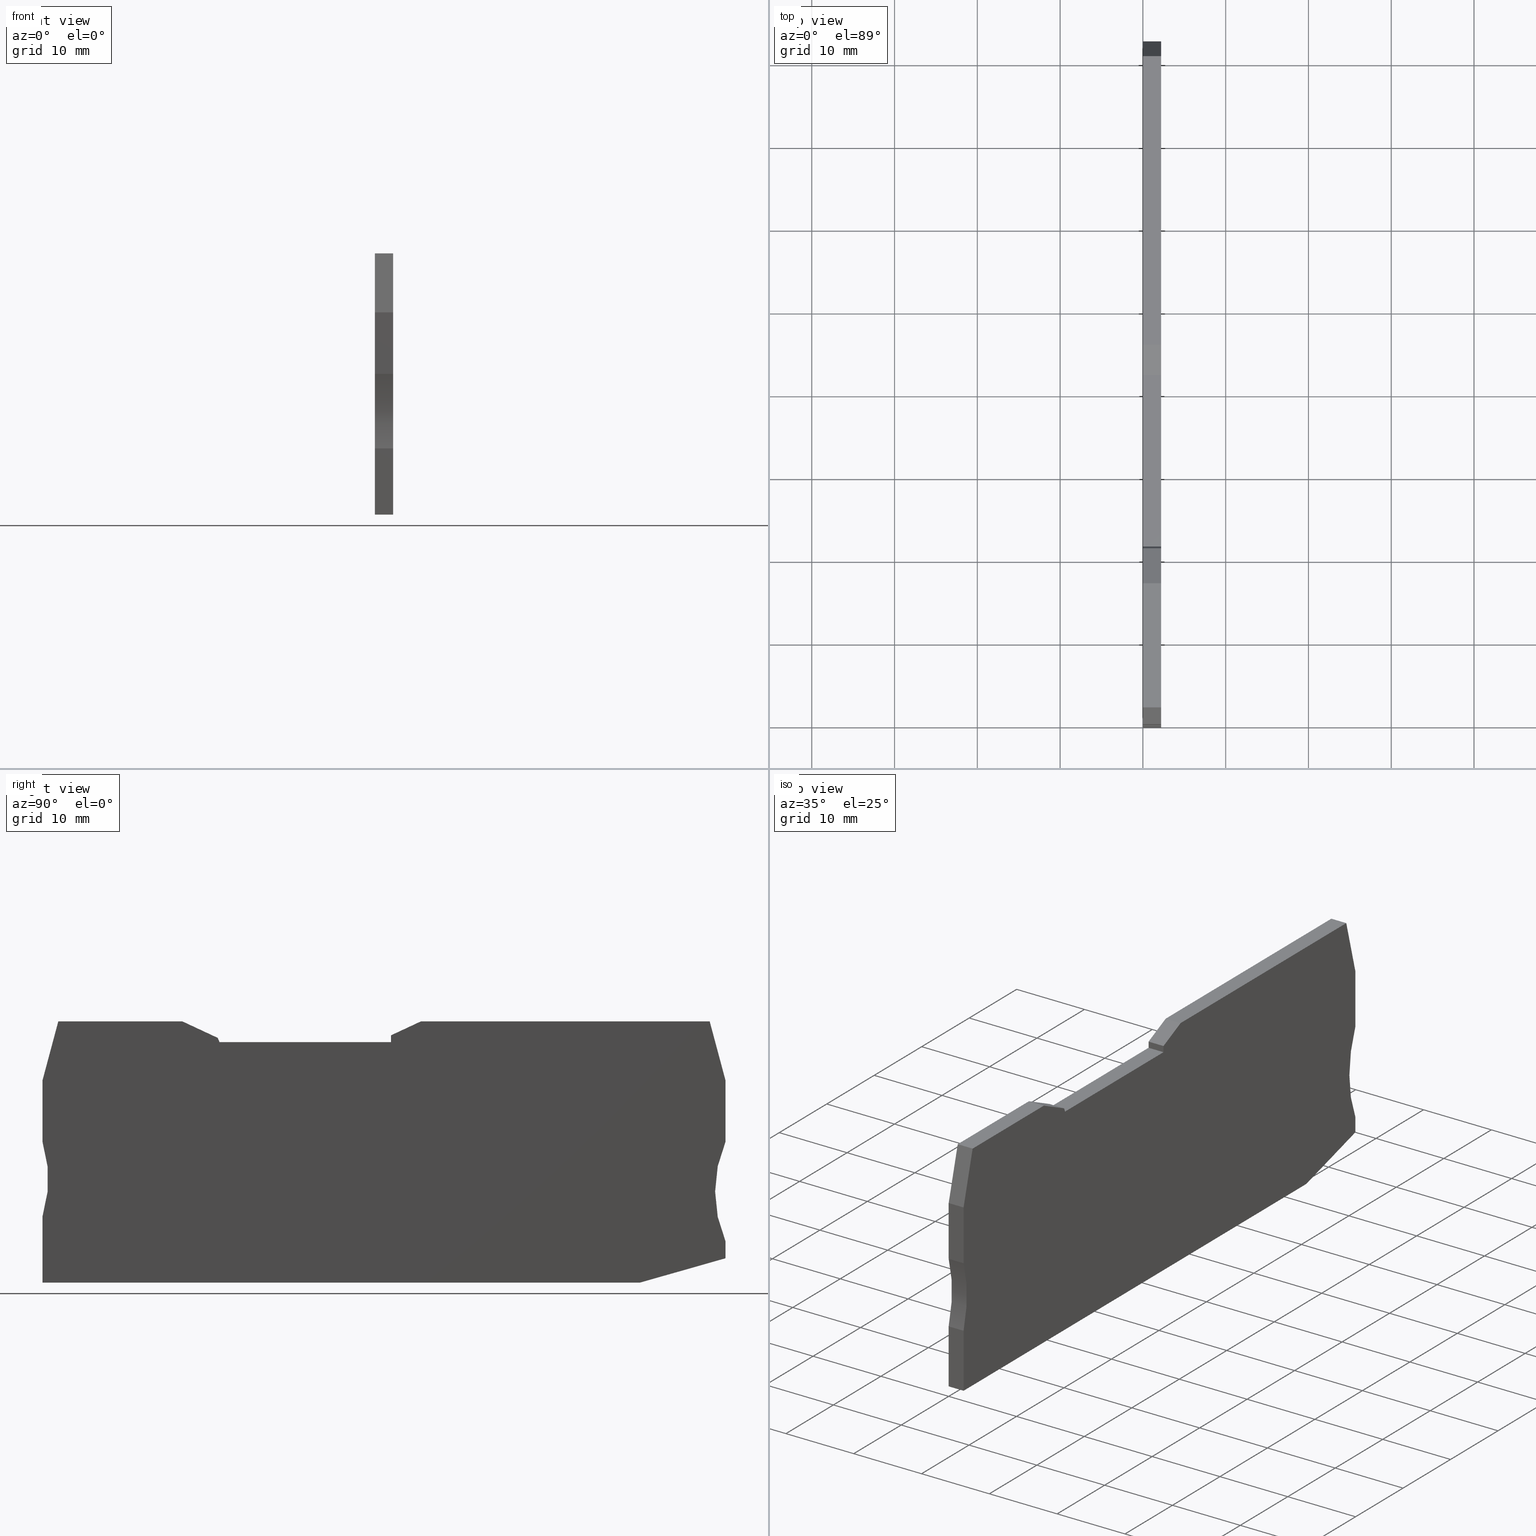
[diagram: canonical four-view strip — front | top / right | iso, engineering-drawing reading convention]
A machine part, canonical four-view strip (front | top / right | iso — engineering-drawing reading convention). The complete STEP part file that produces these views, byte-faithful:
ISO-10303-21;
HEADER;
FILE_DESCRIPTION(('Creo Elements/Direct Modeling STEP Export'),'2;1');
FILE_NAME(
'D:/temp/JobSpoolerServerData/JobServer Files/1ddbb790-b4e9-42f2-b97c-39
235b41f7a1/work/output/model.stp','2018-02-08T18:13:26',(''),(''),
'Creo Elements/Direct Modeling STEP processor for AP214 (Solid Model)',
'Creo Elements/Direct Modeling 18.1I  14-Aug-2016 (C) Parametric Technol
ogy GmbH','');
FILE_SCHEMA(('AUTOMOTIVE_DESIGN { 1 0 10303 214 1 1 1 1 }'));
ENDSEC;
DATA;
#10=CARTESIAN_POINT('',(73.4877845817932,-13.5354749771187,
-2.22044604925031E-14));
#20=DIRECTION('',(0.,0.,1.));
#30=DIRECTION('',(1.,0.,0.));
#40=AXIS2_PLACEMENT_3D('',#10,#20,#30);
#50=PLANE('',#40);
#60=CARTESIAN_POINT('',(47.920285,-38.2000000000045,
-2.22044604925031E-14));
#70=DIRECTION('',(1.,0.,0.));
#80=VECTOR('',#70,1.);
#90=LINE('',#60,#80);
#100=CARTESIAN_POINT('',(8.72968082603374,-38.2000000000045,
-2.22044604925031E-14));
#110=VERTEX_POINT('',#100);
#120=CARTESIAN_POINT('',(80.9082470389631,-38.2000000000045,
-2.22044604925031E-14));
#130=VERTEX_POINT('',#120);
#140=EDGE_CURVE('',#110,#130,#90,.T.);
#150=ORIENTED_EDGE('',*,*,#140,.F.);
#160=CARTESIAN_POINT('',(47.920285,-47.5820316150173,
-2.22044604925031E-14));
#170=DIRECTION('',(-0.961855207107832,-0.273559062287377,0.));
#180=VECTOR('',#170,1.);
#190=LINE('',#160,#180);
#200=CARTESIAN_POINT('',(91.2296808273924,-35.2645043788768,
-2.22044604925031E-14));
#210=VERTEX_POINT('',#200);
#220=EDGE_CURVE('',#210,#130,#190,.T.);
#230=ORIENTED_EDGE('',*,*,#220,.T.);
#240=CARTESIAN_POINT('',(91.2296808273924,-33.886127,
-2.22044604925031E-14));
#250=DIRECTION('',(0.,1.,0.));
#260=VECTOR('',#250,1.);
#270=LINE('',#240,#260);
#280=CARTESIAN_POINT('',(91.2296808273924,-33.2000000030743,
-2.22044604925031E-14));
#290=VERTEX_POINT('',#280);
#300=EDGE_CURVE('',#210,#290,#270,.T.);
#310=ORIENTED_EDGE('',*,*,#300,.F.);
#320=CARTESIAN_POINT('',(104.977407910921,-27.2000000000058,
-2.22044604925031E-14));
#330=DIRECTION('',(0.,0.,1.));
#340=DIRECTION('',(1.,0.,0.));
#350=AXIS2_PLACEMENT_3D('',#320,#330,#340);
#360=CIRCLE('',#350,15.);
#370=CARTESIAN_POINT('',(91.2296808260532,-21.2000000000058,
-2.22044604925031E-14));
#380=VERTEX_POINT('',#370);
#390=EDGE_CURVE('',#380,#290,#360,.T.);
#400=ORIENTED_EDGE('',*,*,#390,.T.);
#410=CARTESIAN_POINT('',(91.2296808260532,-33.886127,
-2.22044604925031E-14));
#420=DIRECTION('',(-2.77555756156289E-17,1.,0.));
#430=VECTOR('',#420,1.);
#440=LINE('',#410,#430);
#450=CARTESIAN_POINT('',(91.2296808260532,-13.7655444566897,
-2.22044604925031E-14));
#460=VERTEX_POINT('',#450);
#470=EDGE_CURVE('',#380,#460,#440,.T.);
#480=ORIENTED_EDGE('',*,*,#470,.F.);
#490=CARTESIAN_POINT('',(96.6209746697856,-33.886127,
-2.22044604925031E-14));
#500=DIRECTION('',(-0.258819045102908,0.965925826288965,0.));
#510=VECTOR('',#500,1.);
#520=LINE('',#490,#510);
#530=CARTESIAN_POINT('',(89.323076435176,-6.65000000001358,
-2.22044604925031E-14));
#540=VERTEX_POINT('',#530);
#550=EDGE_CURVE('',#460,#540,#520,.T.);
#560=ORIENTED_EDGE('',*,*,#550,.F.);
#570=CARTESIAN_POINT('',(47.920285,-6.65000000001358,
-2.22044604925031E-14));
#580=DIRECTION('',(-1.,-2.77555756156289E-17,0.));
#590=VECTOR('',#580,1.);
#600=LINE('',#570,#590);
#610=CARTESIAN_POINT('',(54.4296808260525,-6.65000000001358,
-2.22044604925031E-14));
#620=VERTEX_POINT('',#610);
#630=EDGE_CURVE('',#540,#620,#600,.T.);
#640=ORIENTED_EDGE('',*,*,#630,.F.);
#650=CARTESIAN_POINT('',(47.920285,-9.68538112366281,
-2.22044604925031E-14));
#660=DIRECTION('',(-0.906307787036715,-0.42261826174056,0.));
#670=VECTOR('',#660,1.);
#680=LINE('',#650,#670);
#690=CARTESIAN_POINT('',(50.8284150539722,-8.32929780858542,
-2.22044604925031E-14));
#700=VERTEX_POINT('',#690);
#710=EDGE_CURVE('',#620,#700,#680,.T.);
#720=ORIENTED_EDGE('',*,*,#710,.F.);
#730=CARTESIAN_POINT('',(50.8284150539722,-33.886127,
-2.22044604925031E-14));
#740=DIRECTION('',(0.,-1.,0.));
#750=VECTOR('',#740,1.);
#760=LINE('',#730,#750);
#770=CARTESIAN_POINT('',(50.8284150539722,-9.15000000001104,
-2.22044604925031E-14));
#780=VERTEX_POINT('',#770);
#790=EDGE_CURVE('',#700,#780,#760,.T.);
#800=ORIENTED_EDGE('',*,*,#790,.F.);
#810=CARTESIAN_POINT('',(47.920285,-9.15000000001104,
-2.22044604925031E-14));
#820=DIRECTION('',(1.,6.69640348774667E-16,0.));
#830=VECTOR('',#820,1.);
#840=LINE('',#810,#830);
#850=CARTESIAN_POINT('',(30.1111811089338,-9.15000000001105,
-2.22044604925031E-14));
#860=VERTEX_POINT('',#850);
#870=EDGE_CURVE('',#860,#780,#840,.T.);
#880=ORIENTED_EDGE('',*,*,#870,.T.);
#890=CARTESIAN_POINT('',(40.5658283475003,-33.886127,
-2.22044604925031E-14));
#900=DIRECTION('',(-0.389303997086195,0.92110933002153,0.));
#910=VECTOR('',#900,1.);
#920=LINE('',#890,#910);
#930=CARTESIAN_POINT('',(29.8952339400211,-8.63906008270748,
-2.22044604925031E-14));
#940=VERTEX_POINT('',#930);
#950=EDGE_CURVE('',#860,#940,#920,.T.);
#960=ORIENTED_EDGE('',*,*,#950,.F.);
#970=CARTESIAN_POINT('',(47.920285,-17.0442794306105,
-2.22044604925031E-14));
#980=DIRECTION('',(0.90630778703665,-0.422618261740699,0.));
#990=VECTOR('',#980,1.);
#1000=LINE('',#970,#990);
#1010=CARTESIAN_POINT('',(25.6296808273747,-6.65000000001358,
-2.22044604925031E-14));
#1020=VERTEX_POINT('',#1010);
#1030=EDGE_CURVE('',#1020,#940,#1000,.T.);
#1040=ORIENTED_EDGE('',*,*,#1030,.T.);
#1050=CARTESIAN_POINT('',(47.920285,-6.65000000001358,
-2.22044604925031E-14));
#1060=DIRECTION('',(-1.,3.77302406067959E-29,0.));
#1070=VECTOR('',#1060,1.);
#1080=LINE('',#1050,#1070);
#1090=CARTESIAN_POINT('',(10.6362852169109,-6.65000000001358,
-2.22044604925031E-14));
#1100=VERTEX_POINT('',#1090);
#1110=EDGE_CURVE('',#1020,#1100,#1080,.T.);
#1120=ORIENTED_EDGE('',*,*,#1110,.F.);
#1130=CARTESIAN_POINT('',(3.33838698230316,-33.886127,
-2.22044604925031E-14));
#1140=DIRECTION('',(-0.258819045102848,-0.965925826288981,0.));
#1150=VECTOR('',#1140,1.);
#1160=LINE('',#1130,#1150);
#1170=CARTESIAN_POINT('',(8.72968082605227,-13.7655444566222,
-2.22044604925031E-14));
#1180=VERTEX_POINT('',#1170);
#1190=EDGE_CURVE('',#1100,#1180,#1160,.T.);
#1200=ORIENTED_EDGE('',*,*,#1190,.F.);
#1210=CARTESIAN_POINT('',(8.72968082604465,-33.886127,
-2.22044604925031E-14));
#1220=DIRECTION('',(-3.78848562751832E-13,-1.,0.));
#1230=VECTOR('',#1220,1.);
#1240=LINE('',#1210,#1230);
#1250=CARTESIAN_POINT('',(8.72968082604945,-21.2000000000586,
-2.22044604925031E-14));
#1260=VERTEX_POINT('',#1250);
#1270=EDGE_CURVE('',#1180,#1260,#1240,.T.);
#1280=ORIENTED_EDGE('',*,*,#1270,.F.);
#1290=CARTESIAN_POINT('',(-5.57940719521947,-25.7000000000117,
-2.22044604925031E-14));
#1300=DIRECTION('',(0.,0.,1.));
#1310=DIRECTION('',(1.,0.,0.));
#1320=AXIS2_PLACEMENT_3D('',#1290,#1300,#1310);
#1330=CIRCLE('',#1320,15.);
#1340=CARTESIAN_POINT('',(8.72968082603374,-30.2000000000147,
-2.22044604925031E-14));
#1350=VERTEX_POINT('',#1340);
#1360=EDGE_CURVE('',#1350,#1260,#1330,.T.);
#1370=ORIENTED_EDGE('',*,*,#1360,.T.);
#1380=CARTESIAN_POINT('',(8.72968082603374,-33.886127,
-2.22044604925031E-14));
#1390=DIRECTION('',(0.,-1.,0.));
#1400=VECTOR('',#1390,1.);
#1410=LINE('',#1380,#1400);
#1420=EDGE_CURVE('',#1350,#110,#1410,.T.);
#1430=ORIENTED_EDGE('',*,*,#1420,.F.);
#1440=EDGE_LOOP('',(#1430,#1370,#1280,#1200,#1120,#1040,#960,#880,#800,
#720,#640,#560,#480,#400,#310,#230,#150));
#1450=FACE_OUTER_BOUND('',#1440,.T.);
#1460=ADVANCED_FACE('',(#1450),#50,.F.);
#1470=COLOUR_RGB('',0.560784339904785,0.588235318660736,
0.600000023841858);
#1480=FILL_AREA_STYLE_COLOUR('',#1470);
#1490=FILL_AREA_STYLE('',(#1480));
#1500=SURFACE_STYLE_FILL_AREA(#1490);
#1510=SURFACE_SIDE_STYLE('',(#1500));
#1520=SURFACE_STYLE_USAGE(.BOTH.,#1510);
#1530=PRESENTATION_STYLE_ASSIGNMENT((#1520));
#1540=CARTESIAN_POINT('',(73.4877845817932,-13.5354749771187,
2.19999999999998));
#1550=DIRECTION('',(0.,0.,1.));
#1560=DIRECTION('',(1.,0.,0.));
#1570=AXIS2_PLACEMENT_3D('',#1540,#1550,#1560);
#1580=PLANE('',#1570);
#1590=CARTESIAN_POINT('',(8.72968082603374,-33.886127,2.19999999999998))
;
#1600=DIRECTION('',(0.,-1.,0.));
#1610=VECTOR('',#1600,1.);
#1620=LINE('',#1590,#1610);
#1630=CARTESIAN_POINT('',(8.72968082603374,-30.2000000000147,
2.19999999999998));
#1640=VERTEX_POINT('',#1630);
#1650=CARTESIAN_POINT('',(8.72968082603374,-38.2000000000045,
2.19999999999998));
#1660=VERTEX_POINT('',#1650);
#1670=EDGE_CURVE('',#1640,#1660,#1620,.T.);
#1680=ORIENTED_EDGE('',*,*,#1670,.T.);
#1690=CARTESIAN_POINT('',(-5.57940719521947,-25.7000000000117,
2.19999999999998));
#1700=DIRECTION('',(0.,0.,1.));
#1710=DIRECTION('',(1.,0.,0.));
#1720=AXIS2_PLACEMENT_3D('',#1690,#1700,#1710);
#1730=CIRCLE('',#1720,15.);
#1740=CARTESIAN_POINT('',(8.72968082604945,-21.2000000000586,
2.19999999999998));
#1750=VERTEX_POINT('',#1740);
#1760=EDGE_CURVE('',#1640,#1750,#1730,.T.);
#1770=ORIENTED_EDGE('',*,*,#1760,.F.);
#1780=CARTESIAN_POINT('',(8.72968082604465,-33.886127,2.19999999999998))
;
#1790=DIRECTION('',(-3.78848562751832E-13,-1.,0.));
#1800=VECTOR('',#1790,1.);
#1810=LINE('',#1780,#1800);
#1820=CARTESIAN_POINT('',(8.72968082605227,-13.7655444566222,
2.19999999999998));
#1830=VERTEX_POINT('',#1820);
#1840=EDGE_CURVE('',#1830,#1750,#1810,.T.);
#1850=ORIENTED_EDGE('',*,*,#1840,.T.);
#1860=CARTESIAN_POINT('',(3.33838698230316,-33.886127,2.19999999999998))
;
#1870=DIRECTION('',(-0.258819045102848,-0.965925826288981,0.));
#1880=VECTOR('',#1870,1.);
#1890=LINE('',#1860,#1880);
#1900=CARTESIAN_POINT('',(10.6362852169109,-6.65000000001358,
2.19999999999998));
#1910=VERTEX_POINT('',#1900);
#1920=EDGE_CURVE('',#1910,#1830,#1890,.T.);
#1930=ORIENTED_EDGE('',*,*,#1920,.T.);
#1940=CARTESIAN_POINT('',(47.920285,-6.65000000001358,2.19999999999998))
;
#1950=DIRECTION('',(-1.,3.77302406067959E-29,0.));
#1960=VECTOR('',#1950,1.);
#1970=LINE('',#1940,#1960);
#1980=CARTESIAN_POINT('',(25.6296808273747,-6.65000000001358,
2.19999999999998));
#1990=VERTEX_POINT('',#1980);
#2000=EDGE_CURVE('',#1990,#1910,#1970,.T.);
#2010=ORIENTED_EDGE('',*,*,#2000,.T.);
#2020=CARTESIAN_POINT('',(47.920285,-17.0442794306105,2.19999999999998))
;
#2030=DIRECTION('',(0.90630778703665,-0.422618261740699,0.));
#2040=VECTOR('',#2030,1.);
#2050=LINE('',#2020,#2040);
#2060=CARTESIAN_POINT('',(29.8952339400211,-8.63906008270748,
2.19999999999998));
#2070=VERTEX_POINT('',#2060);
#2080=EDGE_CURVE('',#1990,#2070,#2050,.T.);
#2090=ORIENTED_EDGE('',*,*,#2080,.F.);
#2100=CARTESIAN_POINT('',(40.5658283475003,-33.886127,2.19999999999998))
;
#2110=DIRECTION('',(-0.389303997086195,0.92110933002153,0.));
#2120=VECTOR('',#2110,1.);
#2130=LINE('',#2100,#2120);
#2140=CARTESIAN_POINT('',(30.1111811089338,-9.15000000001106,
2.19999999999998));
#2150=VERTEX_POINT('',#2140);
#2160=EDGE_CURVE('',#2150,#2070,#2130,.T.);
#2170=ORIENTED_EDGE('',*,*,#2160,.T.);
#2180=CARTESIAN_POINT('',(47.920285,-9.15000000001105,2.19999999999998))
;
#2190=DIRECTION('',(-1.,-6.69640348774667E-16,0.));
#2200=VECTOR('',#2190,1.);
#2210=LINE('',#2180,#2200);
#2220=CARTESIAN_POINT('',(50.8284150539722,-9.15000000001105,
2.19999999999998));
#2230=VERTEX_POINT('',#2220);
#2240=EDGE_CURVE('',#2230,#2150,#2210,.T.);
#2250=ORIENTED_EDGE('',*,*,#2240,.T.);
#2260=CARTESIAN_POINT('',(50.8284150539722,-33.886127,2.19999999999998))
;
#2270=DIRECTION('',(0.,-1.,0.));
#2280=VECTOR('',#2270,1.);
#2290=LINE('',#2260,#2280);
#2300=CARTESIAN_POINT('',(50.8284150539722,-8.32929780858542,
2.19999999999998));
#2310=VERTEX_POINT('',#2300);
#2320=EDGE_CURVE('',#2310,#2230,#2290,.T.);
#2330=ORIENTED_EDGE('',*,*,#2320,.T.);
#2340=CARTESIAN_POINT('',(47.920285,-9.68538112366281,2.19999999999998))
;
#2350=DIRECTION('',(-0.906307787036715,-0.42261826174056,0.));
#2360=VECTOR('',#2350,1.);
#2370=LINE('',#2340,#2360);
#2380=CARTESIAN_POINT('',(54.4296808260525,-6.65000000001358,
2.19999999999998));
#2390=VERTEX_POINT('',#2380);
#2400=EDGE_CURVE('',#2390,#2310,#2370,.T.);
#2410=ORIENTED_EDGE('',*,*,#2400,.T.);
#2420=CARTESIAN_POINT('',(47.920285,-6.65000000001358,2.19999999999998))
;
#2430=DIRECTION('',(-1.,-2.77555756156289E-17,0.));
#2440=VECTOR('',#2430,1.);
#2450=LINE('',#2420,#2440);
#2460=CARTESIAN_POINT('',(89.323076435176,-6.65000000001358,
2.19999999999998));
#2470=VERTEX_POINT('',#2460);
#2480=EDGE_CURVE('',#2470,#2390,#2450,.T.);
#2490=ORIENTED_EDGE('',*,*,#2480,.T.);
#2500=CARTESIAN_POINT('',(96.6209746697856,-33.886127,2.19999999999998))
;
#2510=DIRECTION('',(-0.258819045102908,0.965925826288965,0.));
#2520=VECTOR('',#2510,1.);
#2530=LINE('',#2500,#2520);
#2540=CARTESIAN_POINT('',(91.2296808260532,-13.7655444566897,
2.19999999999998));
#2550=VERTEX_POINT('',#2540);
#2560=EDGE_CURVE('',#2550,#2470,#2530,.T.);
#2570=ORIENTED_EDGE('',*,*,#2560,.T.);
#2580=CARTESIAN_POINT('',(91.2296808260532,-33.886127,2.19999999999998))
;
#2590=DIRECTION('',(-2.77555756156289E-17,1.,0.));
#2600=VECTOR('',#2590,1.);
#2610=LINE('',#2580,#2600);
#2620=CARTESIAN_POINT('',(91.2296808260532,-21.2000000000058,
2.19999999999998));
#2630=VERTEX_POINT('',#2620);
#2640=EDGE_CURVE('',#2630,#2550,#2610,.T.);
#2650=ORIENTED_EDGE('',*,*,#2640,.T.);
#2660=CARTESIAN_POINT('',(104.977407910921,-27.2000000000058,
2.19999999999998));
#2670=DIRECTION('',(0.,0.,1.));
#2680=DIRECTION('',(1.,0.,0.));
#2690=AXIS2_PLACEMENT_3D('',#2660,#2670,#2680);
#2700=CIRCLE('',#2690,15.);
#2710=CARTESIAN_POINT('',(91.2296808273924,-33.2000000030743,
2.19999999999998));
#2720=VERTEX_POINT('',#2710);
#2730=EDGE_CURVE('',#2630,#2720,#2700,.T.);
#2740=ORIENTED_EDGE('',*,*,#2730,.F.);
#2750=CARTESIAN_POINT('',(91.2296808273924,-33.886127,2.19999999999998))
;
#2760=DIRECTION('',(0.,1.,0.));
#2770=VECTOR('',#2760,1.);
#2780=LINE('',#2750,#2770);
#2790=CARTESIAN_POINT('',(91.2296808273924,-35.2645043788768,
2.19999999999998));
#2800=VERTEX_POINT('',#2790);
#2810=EDGE_CURVE('',#2800,#2720,#2780,.T.);
#2820=ORIENTED_EDGE('',*,*,#2810,.T.);
#2830=CARTESIAN_POINT('',(47.920285,-47.5820316150173,2.19999999999998))
;
#2840=DIRECTION('',(-0.961855207107832,-0.273559062287377,0.));
#2850=VECTOR('',#2840,1.);
#2860=LINE('',#2830,#2850);
#2870=CARTESIAN_POINT('',(80.9082470389631,-38.2000000000045,
2.19999999999998));
#2880=VERTEX_POINT('',#2870);
#2890=EDGE_CURVE('',#2800,#2880,#2860,.T.);
#2900=ORIENTED_EDGE('',*,*,#2890,.F.);
#2910=CARTESIAN_POINT('',(47.920285,-38.2000000000045,2.19999999999998))
;
#2920=DIRECTION('',(1.,0.,0.));
#2930=VECTOR('',#2920,1.);
#2940=LINE('',#2910,#2930);
#2950=EDGE_CURVE('',#1660,#2880,#2940,.T.);
#2960=ORIENTED_EDGE('',*,*,#2950,.T.);
#2970=EDGE_LOOP('',(#2960,#2900,#2820,#2740,#2650,#2570,#2490,#2410,
#2330,#2250,#2170,#2090,#2010,#1930,#1850,#1770,#1680));
#2980=FACE_OUTER_BOUND('',#2970,.T.);
#2990=ADVANCED_FACE('',(#2980),#1580,.T.);
#3000=COLOUR_RGB('',0.560784339904785,0.588235318660736,
0.600000023841858);
#3010=FILL_AREA_STYLE_COLOUR('',#3000);
#3020=FILL_AREA_STYLE('',(#3010));
#3030=SURFACE_STYLE_FILL_AREA(#3020);
#3040=SURFACE_SIDE_STYLE('',(#3030));
#3050=SURFACE_STYLE_USAGE(.BOTH.,#3040);
#3060=PRESENTATION_STYLE_ASSIGNMENT((#3050));
#3070=CARTESIAN_POINT('',(30.829680828215,-10.8500000000143,
2.19999999999998));
#3080=DIRECTION('',(0.92110933002153,0.389303997086195,0.));
#3090=DIRECTION('',(0.389303997086195,-0.92110933002153,0.));
#3100=AXIS2_PLACEMENT_3D('',#3070,#3080,#3090);
#3110=PLANE('',#3100);
#3120=CARTESIAN_POINT('',(29.8952339400211,-8.63906008270748,
-2.1316282072803E-14));
#3130=DIRECTION('',(0.,0.,1.));
#3140=VECTOR('',#3130,1.);
#3150=LINE('',#3120,#3140);
#3160=EDGE_CURVE('',#940,#2070,#3150,.T.);
#3170=ORIENTED_EDGE('',*,*,#3160,.T.);
#3180=ORIENTED_EDGE('',*,*,#950,.T.);
#3190=CARTESIAN_POINT('',(30.1111811089338,-9.15000000001105,
-2.1316282072803E-14));
#3200=DIRECTION('',(-1.92535423529343E-15,4.55546761142705E-15,-1.));
#3210=VECTOR('',#3200,1.);
#3220=LINE('',#3190,#3210);
#3230=EDGE_CURVE('',#2150,#860,#3220,.T.);
#3240=ORIENTED_EDGE('',*,*,#3230,.T.);
#3250=ORIENTED_EDGE('',*,*,#2160,.F.);
#3260=EDGE_LOOP('',(#3250,#3240,#3180,#3170));
#3270=FACE_OUTER_BOUND('',#3260,.T.);
#3280=ADVANCED_FACE('',(#3270),#3110,.T.);
#3290=COLOUR_RGB('',0.560784339904785,0.588235318660736,
0.600000023841858);
#3300=FILL_AREA_STYLE_COLOUR('',#3290);
#3310=FILL_AREA_STYLE('',(#3300));
#3320=SURFACE_STYLE_FILL_AREA(#3310);
#3330=SURFACE_SIDE_STYLE('',(#3320));
#3340=SURFACE_STYLE_USAGE(.BOTH.,#3330);
#3350=PRESENTATION_STYLE_ASSIGNMENT((#3340));
#3360=CARTESIAN_POINT('',(40.4300980895686,-9.15000000001106,
2.10000000003397));
#3370=DIRECTION('',(-6.69640348774667E-16,1.,4.55546761142705E-15));
#3380=DIRECTION('',(1.,6.69640348774745E-16,-1.70351068697075E-14));
#3390=AXIS2_PLACEMENT_3D('',#3360,#3370,#3380);
#3400=PLANE('',#3390);
#3410=ORIENTED_EDGE('',*,*,#2240,.F.);
#3420=ORIENTED_EDGE('',*,*,#3230,.F.);
#3430=ORIENTED_EDGE('',*,*,#870,.F.);
#3440=CARTESIAN_POINT('',(50.8284150539722,-9.15000000001104,
-2.1316282072803E-14));
#3450=DIRECTION('',(0.,-4.55546761142705E-15,1.));
#3460=VECTOR('',#3450,1.);
#3470=LINE('',#3440,#3460);
#3480=EDGE_CURVE('',#780,#2230,#3470,.T.);
#3490=ORIENTED_EDGE('',*,*,#3480,.F.);
#3500=EDGE_LOOP('',(#3490,#3430,#3420,#3410));
#3510=FACE_OUTER_BOUND('',#3500,.T.);
#3520=ADVANCED_FACE('',(#3510),#3400,.T.);
#3530=COLOUR_RGB('',0.560784339904785,0.588235318660736,
0.600000023841858);
#3540=FILL_AREA_STYLE_COLOUR('',#3530);
#3550=FILL_AREA_STYLE('',(#3540));
#3560=SURFACE_STYLE_FILL_AREA(#3550);
#3570=SURFACE_SIDE_STYLE('',(#3560));
#3580=SURFACE_STYLE_USAGE(.BOTH.,#3570);
#3590=PRESENTATION_STYLE_ASSIGNMENT((#3580));
#3600=CARTESIAN_POINT('',(25.5188334960532,-6.65000000001358,
2.19999999999998));
#3610=DIRECTION('',(3.77302406067959E-29,1.,0.));
#3620=DIRECTION('',(1.,-3.77302406067959E-29,0.));
#3630=AXIS2_PLACEMENT_3D('',#3600,#3610,#3620);
#3640=PLANE('',#3630);
#3650=ORIENTED_EDGE('',*,*,#2000,.F.);
#3660=CARTESIAN_POINT('',(10.6362852169109,-6.65000000001358,
-2.1316282072803E-14));
#3670=DIRECTION('',(0.,0.,1.));
#3680=VECTOR('',#3670,1.);
#3690=LINE('',#3660,#3680);
#3700=EDGE_CURVE('',#1100,#1910,#3690,.T.);
#3710=ORIENTED_EDGE('',*,*,#3700,.T.);
#3720=ORIENTED_EDGE('',*,*,#1110,.T.);
#3730=CARTESIAN_POINT('',(25.6296808273747,-6.65000000001357,
-2.1316282072803E-14));
#3740=DIRECTION('',(0.,0.,1.));
#3750=VECTOR('',#3740,1.);
#3760=LINE('',#3730,#3750);
#3770=EDGE_CURVE('',#1020,#1990,#3760,.T.);
#3780=ORIENTED_EDGE('',*,*,#3770,.F.);
#3790=EDGE_LOOP('',(#3780,#3720,#3710,#3650));
#3800=FACE_OUTER_BOUND('',#3790,.T.);
#3810=ADVANCED_FACE('',(#3800),#3640,.T.);
#3820=COLOUR_RGB('',0.560784339904785,0.588235318660736,
0.600000023841858);
#3830=FILL_AREA_STYLE_COLOUR('',#3820);
#3840=FILL_AREA_STYLE('',(#3830));
#3850=SURFACE_STYLE_FILL_AREA(#3840);
#3860=SURFACE_SIDE_STYLE('',(#3850));
#3870=SURFACE_STYLE_USAGE(.BOTH.,#3860);
#3880=PRESENTATION_STYLE_ASSIGNMENT((#3870));
#3890=CARTESIAN_POINT('',(50.8284150539722,-8.64783293898923,
2.19999999999998));
#3900=DIRECTION('',(-1.,0.,0.));
#3910=DIRECTION('',(0.,1.,0.));
#3920=AXIS2_PLACEMENT_3D('',#3890,#3900,#3910);
#3930=PLANE('',#3920);
#3940=ORIENTED_EDGE('',*,*,#2320,.F.);
#3950=ORIENTED_EDGE('',*,*,#3480,.T.);
#3960=ORIENTED_EDGE('',*,*,#790,.T.);
#3970=CARTESIAN_POINT('',(50.8284150539722,-8.32929780858542,
-2.1316282072803E-14));
#3980=DIRECTION('',(0.,0.,1.));
#3990=VECTOR('',#3980,1.);
#4000=LINE('',#3970,#3990);
#4010=EDGE_CURVE('',#700,#2310,#4000,.T.);
#4020=ORIENTED_EDGE('',*,*,#4010,.F.);
#4030=EDGE_LOOP('',(#4020,#3960,#3950,#3940));
#4040=FACE_OUTER_BOUND('',#4030,.T.);
#4050=ADVANCED_FACE('',(#4040),#3930,.T.);
#4060=COLOUR_RGB('',0.560784339904785,0.588235318660736,
0.600000023841858);
#4070=FILL_AREA_STYLE_COLOUR('',#4060);
#4080=FILL_AREA_STYLE('',(#4070));
#4090=SURFACE_STYLE_FILL_AREA(#4080);
#4100=SURFACE_SIDE_STYLE('',(#4090));
#4110=SURFACE_STYLE_USAGE(.BOTH.,#4100);
#4120=PRESENTATION_STYLE_ASSIGNMENT((#4110));
#4130=CARTESIAN_POINT('',(8.72968082605225,-13.831370705416,
2.19999999999998));
#4140=DIRECTION('',(-1.,3.78848562751832E-13,0.));
#4150=DIRECTION('',(3.78848562751832E-13,1.,0.));
#4160=AXIS2_PLACEMENT_3D('',#4130,#4140,#4150);
#4170=PLANE('',#4160);
#4180=ORIENTED_EDGE('',*,*,#1840,.F.);
#4190=CARTESIAN_POINT('',(8.72968082604945,-21.2000000000586,
2.19999999999998));
#4200=DIRECTION('',(0.,0.,1.));
#4210=VECTOR('',#4200,1.);
#4220=LINE('',#4190,#4210);
#4230=EDGE_CURVE('',#1260,#1750,#4220,.T.);
#4240=ORIENTED_EDGE('',*,*,#4230,.T.);
#4250=ORIENTED_EDGE('',*,*,#1270,.T.);
#4260=CARTESIAN_POINT('',(8.72968082605227,-13.7655444566222,
-2.1316282072803E-14));
#4270=DIRECTION('',(0.,0.,1.));
#4280=VECTOR('',#4270,1.);
#4290=LINE('',#4260,#4280);
#4300=EDGE_CURVE('',#1180,#1830,#4290,.T.);
#4310=ORIENTED_EDGE('',*,*,#4300,.F.);
#4320=EDGE_LOOP('',(#4310,#4250,#4240,#4180));
#4330=FACE_OUTER_BOUND('',#4320,.T.);
#4340=ADVANCED_FACE('',(#4330),#4170,.T.);
#4350=COLOUR_RGB('',0.560784339904785,0.588235318660736,
0.600000023841858);
#4360=FILL_AREA_STYLE_COLOUR('',#4350);
#4370=FILL_AREA_STYLE('',(#4360));
#4380=SURFACE_STYLE_FILL_AREA(#4370);
#4390=SURFACE_SIDE_STYLE('',(#4380));
#4400=SURFACE_STYLE_USAGE(.BOTH.,#4390);
#4410=PRESENTATION_STYLE_ASSIGNMENT((#4400));
#4420=CARTESIAN_POINT('',(54.3292190265036,-6.69684610649522,
2.19999999999998));
#4430=DIRECTION('',(-0.42261826174056,0.906307787036715,0.));
#4440=DIRECTION('',(0.906307787036715,0.42261826174056,0.));
#4450=AXIS2_PLACEMENT_3D('',#4420,#4430,#4440);
#4460=PLANE('',#4450);
#4470=ORIENTED_EDGE('',*,*,#4010,.T.);
#4480=ORIENTED_EDGE('',*,*,#710,.T.);
#4490=CARTESIAN_POINT('',(54.4296808260525,-6.65000000001358,
-2.1316282072803E-14));
#4500=DIRECTION('',(0.,0.,1.));
#4510=VECTOR('',#4500,1.);
#4520=LINE('',#4490,#4510);
#4530=EDGE_CURVE('',#620,#2390,#4520,.T.);
#4540=ORIENTED_EDGE('',*,*,#4530,.F.);
#4550=ORIENTED_EDGE('',*,*,#2400,.F.);
#4560=EDGE_LOOP('',(#4550,#4540,#4480,#4470));
#4570=FACE_OUTER_BOUND('',#4560,.T.);
#4580=ADVANCED_FACE('',(#4570),#4460,.T.);
#4590=COLOUR_RGB('',0.560784339904785,0.588235318660736,
0.600000023841858);
#4600=FILL_AREA_STYLE_COLOUR('',#4590);
#4610=FILL_AREA_STYLE('',(#4600));
#4620=SURFACE_STYLE_FILL_AREA(#4610);
#4630=SURFACE_SIDE_STYLE('',(#4620));
#4640=SURFACE_STYLE_USAGE(.BOTH.,#4630);
#4650=PRESENTATION_STYLE_ASSIGNMENT((#4640));
#4660=CARTESIAN_POINT('',(29.7208814285329,-8.55775817138196,
2.19999999999998));
#4670=DIRECTION('',(0.422618261740699,0.90630778703665,0.));
#4680=DIRECTION('',(0.90630778703665,-0.422618261740699,0.));
#4690=AXIS2_PLACEMENT_3D('',#4660,#4670,#4680);
#4700=PLANE('',#4690);
#4710=ORIENTED_EDGE('',*,*,#3770,.T.);
#4720=ORIENTED_EDGE('',*,*,#1030,.F.);
#4730=ORIENTED_EDGE('',*,*,#3160,.F.);
#4740=ORIENTED_EDGE('',*,*,#2080,.T.);
#4750=EDGE_LOOP('',(#4740,#4730,#4720,#4710));
#4760=FACE_OUTER_BOUND('',#4750,.T.);
#4770=ADVANCED_FACE('',(#4760),#4700,.T.);
#4780=COLOUR_RGB('',0.560784339904785,0.588235318660736,
0.600000023841858);
#4790=FILL_AREA_STYLE_COLOUR('',#4780);
#4800=FILL_AREA_STYLE('',(#4790));
#4810=SURFACE_STYLE_FILL_AREA(#4800);
#4820=SURFACE_SIDE_STYLE('',(#4810));
#4830=SURFACE_STYLE_USAGE(.BOTH.,#4820);
#4840=PRESENTATION_STYLE_ASSIGNMENT((#4830));
#4850=CARTESIAN_POINT('',(88.9394129411867,-6.65000000001358,
2.19999999999998));
#4860=DIRECTION('',(-2.77555756156289E-17,1.,0.));
#4870=DIRECTION('',(1.,2.77555756156289E-17,0.));
#4880=AXIS2_PLACEMENT_3D('',#4850,#4860,#4870);
#4890=PLANE('',#4880);
#4900=ORIENTED_EDGE('',*,*,#2480,.F.);
#4910=ORIENTED_EDGE('',*,*,#4530,.T.);
#4920=ORIENTED_EDGE('',*,*,#630,.T.);
#4930=CARTESIAN_POINT('',(89.323076435176,-6.65000000001358,
-2.1316282072803E-14));
#4940=DIRECTION('',(0.,0.,1.));
#4950=VECTOR('',#4940,1.);
#4960=LINE('',#4930,#4950);
#4970=EDGE_CURVE('',#540,#2470,#4960,.T.);
#4980=ORIENTED_EDGE('',*,*,#4970,.F.);
#4990=EDGE_LOOP('',(#4980,#4920,#4910,#4900));
#5000=FACE_OUTER_BOUND('',#4990,.T.);
#5010=ADVANCED_FACE('',(#5000),#4890,.T.);
#5020=COLOUR_RGB('',0.560784339904785,0.588235318660736,
0.600000023841858);
#5030=FILL_AREA_STYLE_COLOUR('',#5020);
#5040=FILL_AREA_STYLE('',(#5030));
#5050=SURFACE_STYLE_FILL_AREA(#5040);
#5060=SURFACE_SIDE_STYLE('',(#5050));
#5070=SURFACE_STYLE_USAGE(.BOTH.,#5060);
#5080=PRESENTATION_STYLE_ASSIGNMENT((#5070));
#5090=CARTESIAN_POINT('',(8.72968082603374,-30.4972542058063,
2.19999999999998));
#5100=DIRECTION('',(-1.,0.,0.));
#5110=DIRECTION('',(0.,1.,0.));
#5120=AXIS2_PLACEMENT_3D('',#5090,#5100,#5110);
#5130=PLANE('',#5120);
#5140=CARTESIAN_POINT('',(8.72968082603374,-38.2000000000045,
-2.1316282072803E-14));
#5150=DIRECTION('',(0.,0.,1.));
#5160=VECTOR('',#5150,1.);
#5170=LINE('',#5140,#5160);
#5180=EDGE_CURVE('',#110,#1660,#5170,.T.);
#5190=ORIENTED_EDGE('',*,*,#5180,.T.);
#5200=ORIENTED_EDGE('',*,*,#1420,.T.);
#5210=CARTESIAN_POINT('',(8.72968082603374,-30.2000000000147,
2.19999999999998));
#5220=DIRECTION('',(0.,0.,1.));
#5230=VECTOR('',#5220,1.);
#5240=LINE('',#5210,#5230);
#5250=EDGE_CURVE('',#1350,#1640,#5240,.T.);
#5260=ORIENTED_EDGE('',*,*,#5250,.F.);
#5270=ORIENTED_EDGE('',*,*,#1670,.F.);
#5280=EDGE_LOOP('',(#5270,#5260,#5200,#5190));
#5290=FACE_OUTER_BOUND('',#5280,.T.);
#5300=ADVANCED_FACE('',(#5290),#5130,.T.);
#5310=COLOUR_RGB('',0.560784339904785,0.588235318660736,
0.600000023841858);
#5320=FILL_AREA_STYLE_COLOUR('',#5310);
#5330=FILL_AREA_STYLE('',(#5320));
#5340=SURFACE_STYLE_FILL_AREA(#5330);
#5350=SURFACE_SIDE_STYLE('',(#5340));
#5360=SURFACE_STYLE_USAGE(.BOTH.,#5350);
#5370=PRESENTATION_STYLE_ASSIGNMENT((#5360));
#5380=CARTESIAN_POINT('',(91.2126437391977,-13.7019611829321,
2.19999999999998));
#5390=DIRECTION('',(0.965925826288965,0.258819045102908,0.));
#5400=DIRECTION('',(0.258819045102908,-0.965925826288965,0.));
#5410=AXIS2_PLACEMENT_3D('',#5380,#5390,#5400);
#5420=PLANE('',#5410);
#5430=ORIENTED_EDGE('',*,*,#4970,.T.);
#5440=ORIENTED_EDGE('',*,*,#550,.T.);
#5450=CARTESIAN_POINT('',(91.2296808260532,-13.7655444566897,
-2.1316282072803E-14));
#5460=DIRECTION('',(0.,0.,1.));
#5470=VECTOR('',#5460,1.);
#5480=LINE('',#5450,#5470);
#5490=EDGE_CURVE('',#460,#2550,#5480,.T.);
#5500=ORIENTED_EDGE('',*,*,#5490,.F.);
#5510=ORIENTED_EDGE('',*,*,#2560,.F.);
#5520=EDGE_LOOP('',(#5510,#5500,#5440,#5430));
#5530=FACE_OUTER_BOUND('',#5520,.T.);
#5540=ADVANCED_FACE('',(#5530),#5420,.T.);
#5550=COLOUR_RGB('',0.560784339904785,0.588235318660736,
0.600000023841858);
#5560=FILL_AREA_STYLE_COLOUR('',#5550);
#5570=FILL_AREA_STYLE('',(#5560));
#5580=SURFACE_STYLE_FILL_AREA(#5570);
#5590=SURFACE_SIDE_STYLE('',(#5580));
#5600=SURFACE_STYLE_USAGE(.BOTH.,#5590);
#5610=PRESENTATION_STYLE_ASSIGNMENT((#5600));
#5620=CARTESIAN_POINT('',(-5.57940719521947,-25.7000000000117,
2.19999999999998));
#5630=DIRECTION('',(0.,0.,1.));
#5640=DIRECTION('',(1.,0.,0.));
#5650=AXIS2_PLACEMENT_3D('',#5620,#5630,#5640);
#5660=CYLINDRICAL_SURFACE('',#5650,15.);
#5670=ORIENTED_EDGE('',*,*,#5250,.T.);
#5680=ORIENTED_EDGE('',*,*,#1360,.F.);
#5690=ORIENTED_EDGE('',*,*,#4230,.F.);
#5700=ORIENTED_EDGE('',*,*,#1760,.T.);
#5710=EDGE_LOOP('',(#5700,#5690,#5680,#5670));
#5720=FACE_OUTER_BOUND('',#5710,.T.);
#5730=ADVANCED_FACE('',(#5720),#5660,.F.);
#5740=COLOUR_RGB('',0.560784339904785,0.588235318660736,
0.600000023841858);
#5750=FILL_AREA_STYLE_COLOUR('',#5740);
#5760=FILL_AREA_STYLE('',(#5750));
#5770=SURFACE_STYLE_FILL_AREA(#5760);
#5780=SURFACE_SIDE_STYLE('',(#5770));
#5790=SURFACE_STYLE_USAGE(.BOTH.,#5780);
#5800=PRESENTATION_STYLE_ASSIGNMENT((#5790));
#5810=CARTESIAN_POINT('',(91.2296808260532,-20.7961658625185,
2.19999999999998));
#5820=DIRECTION('',(1.,2.77555756156289E-17,0.));
#5830=DIRECTION('',(2.77555756156289E-17,-1.,0.));
#5840=AXIS2_PLACEMENT_3D('',#5810,#5820,#5830);
#5850=PLANE('',#5840);
#5860=ORIENTED_EDGE('',*,*,#2640,.F.);
#5870=ORIENTED_EDGE('',*,*,#5490,.T.);
#5880=ORIENTED_EDGE('',*,*,#470,.T.);
#5890=CARTESIAN_POINT('',(91.2296808260532,-21.2000000000058,
2.19999999999998));
#5900=DIRECTION('',(0.,0.,1.));
#5910=VECTOR('',#5900,1.);
#5920=LINE('',#5890,#5910);
#5930=EDGE_CURVE('',#380,#2630,#5920,.T.);
#5940=ORIENTED_EDGE('',*,*,#5930,.F.);
#5950=EDGE_LOOP('',(#5940,#5880,#5870,#5860));
#5960=FACE_OUTER_BOUND('',#5950,.T.);
#5970=ADVANCED_FACE('',(#5960),#5850,.T.);
#5980=COLOUR_RGB('',0.560784339904785,0.588235318660736,
0.600000023841858);
#5990=FILL_AREA_STYLE_COLOUR('',#5980);
#6000=FILL_AREA_STYLE('',(#5990));
#6010=SURFACE_STYLE_FILL_AREA(#6000);
#6020=SURFACE_SIDE_STYLE('',(#6010));
#6030=SURFACE_STYLE_USAGE(.BOTH.,#6020);
#6040=PRESENTATION_STYLE_ASSIGNMENT((#6030));
#6050=CARTESIAN_POINT('',(12.7296808260338,-38.2000000000045,
2.19999999999998));
#6060=DIRECTION('',(-0.,-1.,-0.));
#6070=DIRECTION('',(-1.,0.,0.));
#6080=AXIS2_PLACEMENT_3D('',#6050,#6060,#6070);
#6090=PLANE('',#6080);
#6100=ORIENTED_EDGE('',*,*,#2950,.F.);
#6110=CARTESIAN_POINT('',(80.9082470389631,-38.2000000000045,
-2.1316282072803E-14));
#6120=DIRECTION('',(0.,0.,1.));
#6130=VECTOR('',#6120,1.);
#6140=LINE('',#6110,#6130);
#6150=EDGE_CURVE('',#130,#2880,#6140,.T.);
#6160=ORIENTED_EDGE('',*,*,#6150,.T.);
#6170=ORIENTED_EDGE('',*,*,#140,.T.);
#6180=ORIENTED_EDGE('',*,*,#5180,.F.);
#6190=EDGE_LOOP('',(#6180,#6170,#6160,#6100));
#6200=FACE_OUTER_BOUND('',#6190,.T.);
#6210=ADVANCED_FACE('',(#6200),#6090,.T.);
#6220=COLOUR_RGB('',0.560784339904785,0.588235318660736,
0.600000023841858);
#6230=FILL_AREA_STYLE_COLOUR('',#6220);
#6240=FILL_AREA_STYLE('',(#6230));
#6250=SURFACE_STYLE_FILL_AREA(#6240);
#6260=SURFACE_SIDE_STYLE('',(#6250));
#6270=SURFACE_STYLE_USAGE(.BOTH.,#6260);
#6280=PRESENTATION_STYLE_ASSIGNMENT((#6270));
#6290=CARTESIAN_POINT('',(104.977407910921,-27.2000000000058,
2.19999999999998));
#6300=DIRECTION('',(0.,0.,1.));
#6310=DIRECTION('',(1.,0.,0.));
#6320=AXIS2_PLACEMENT_3D('',#6290,#6300,#6310);
#6330=CYLINDRICAL_SURFACE('',#6320,15.);
#6340=ORIENTED_EDGE('',*,*,#5930,.T.);
#6350=ORIENTED_EDGE('',*,*,#390,.F.);
#6360=CARTESIAN_POINT('',(91.2296808273924,-33.2000000030743,
2.19999999999998));
#6370=DIRECTION('',(0.,0.,1.));
#6380=VECTOR('',#6370,1.);
#6390=LINE('',#6360,#6380);
#6400=EDGE_CURVE('',#290,#2720,#6390,.T.);
#6410=ORIENTED_EDGE('',*,*,#6400,.F.);
#6420=ORIENTED_EDGE('',*,*,#2730,.T.);
#6430=EDGE_LOOP('',(#6420,#6410,#6350,#6340));
#6440=FACE_OUTER_BOUND('',#6430,.T.);
#6450=ADVANCED_FACE('',(#6440),#6330,.F.);
#6460=COLOUR_RGB('',0.560784339904785,0.588235318660736,
0.600000023841858);
#6470=FILL_AREA_STYLE_COLOUR('',#6460);
#6480=FILL_AREA_STYLE('',(#6470));
#6490=SURFACE_STYLE_FILL_AREA(#6480);
#6500=SURFACE_SIDE_STYLE('',(#6490));
#6510=SURFACE_STYLE_USAGE(.BOTH.,#6500);
#6520=PRESENTATION_STYLE_ASSIGNMENT((#6510));
#6530=CARTESIAN_POINT('',(81.1094271828081,-38.1427828106663,
2.19999999999998));
#6540=DIRECTION('',(0.273559062287377,-0.961855207107832,0.));
#6550=DIRECTION('',(-0.961855207107832,-0.273559062287377,0.));
#6560=AXIS2_PLACEMENT_3D('',#6530,#6540,#6550);
#6570=PLANE('',#6560);
#6580=ORIENTED_EDGE('',*,*,#2890,.T.);
#6590=CARTESIAN_POINT('',(91.2296808273924,-35.2645043788768,
-2.1316282072803E-14));
#6600=DIRECTION('',(0.,0.,1.));
#6610=VECTOR('',#6600,1.);
#6620=LINE('',#6590,#6610);
#6630=EDGE_CURVE('',#210,#2800,#6620,.T.);
#6640=ORIENTED_EDGE('',*,*,#6630,.T.);
#6650=ORIENTED_EDGE('',*,*,#220,.F.);
#6660=ORIENTED_EDGE('',*,*,#6150,.F.);
#6670=EDGE_LOOP('',(#6660,#6650,#6640,#6580));
#6680=FACE_OUTER_BOUND('',#6670,.T.);
#6690=ADVANCED_FACE('',(#6680),#6570,.T.);
#6700=COLOUR_RGB('',0.560784339904785,0.588235318660736,
0.600000023841858);
#6710=FILL_AREA_STYLE_COLOUR('',#6700);
#6720=FILL_AREA_STYLE('',(#6710));
#6730=SURFACE_STYLE_FILL_AREA(#6720);
#6740=SURFACE_SIDE_STYLE('',(#6730));
#6750=SURFACE_STYLE_USAGE(.BOTH.,#6740);
#6760=PRESENTATION_STYLE_ASSIGNMENT((#6750));
#6770=CARTESIAN_POINT('',(91.2296808273924,-33.7540048102423,
2.19999999999998));
#6780=DIRECTION('',(1.,0.,0.));
#6790=DIRECTION('',(0.,-1.,0.));
#6800=AXIS2_PLACEMENT_3D('',#6770,#6780,#6790);
#6810=PLANE('',#6800);
#6820=ORIENTED_EDGE('',*,*,#6400,.T.);
#6830=ORIENTED_EDGE('',*,*,#300,.T.);
#6840=ORIENTED_EDGE('',*,*,#6630,.F.);
#6850=ORIENTED_EDGE('',*,*,#2810,.F.);
#6860=EDGE_LOOP('',(#6850,#6840,#6830,#6820));
#6870=FACE_OUTER_BOUND('',#6860,.T.);
#6880=ADVANCED_FACE('',(#6870),#6810,.T.);
#6890=COLOUR_RGB('',0.560784339904785,0.588235318660736,
0.600000023841858);
#6900=FILL_AREA_STYLE_COLOUR('',#6890);
#6910=FILL_AREA_STYLE('',(#6900));
#6920=SURFACE_STYLE_FILL_AREA(#6910);
#6930=SURFACE_SIDE_STYLE('',(#6920));
#6940=SURFACE_STYLE_USAGE(.BOTH.,#6930);
#6950=PRESENTATION_STYLE_ASSIGNMENT((#6940));
#6960=CARTESIAN_POINT('',(10.5369857977558,-7.02059047746213,
2.19999999999998));
#6970=DIRECTION('',(-0.965925826288981,0.258819045102848,0.));
#6980=DIRECTION('',(0.258819045102848,0.965925826288981,0.));
#6990=AXIS2_PLACEMENT_3D('',#6960,#6970,#6980);
#7000=PLANE('',#6990);
#7010=ORIENTED_EDGE('',*,*,#4300,.T.);
#7020=ORIENTED_EDGE('',*,*,#1190,.T.);
#7030=ORIENTED_EDGE('',*,*,#3700,.F.);
#7040=ORIENTED_EDGE('',*,*,#1920,.F.);
#7050=EDGE_LOOP('',(#7040,#7030,#7020,#7010));
#7060=FACE_OUTER_BOUND('',#7050,.T.);
#7070=ADVANCED_FACE('',(#7060),#7000,.T.);
#7080=COLOUR_RGB('',0.560784339904785,0.588235318660736,
0.600000023841858);
#7090=FILL_AREA_STYLE_COLOUR('',#7080);
#7100=FILL_AREA_STYLE('',(#7090));
#7110=SURFACE_STYLE_FILL_AREA(#7100);
#7120=SURFACE_SIDE_STYLE('',(#7110));
#7130=SURFACE_STYLE_USAGE(.BOTH.,#7120);
#7140=PRESENTATION_STYLE_ASSIGNMENT((#7130));
#7150=CLOSED_SHELL('',(#3280,#3520,#3810,#4050,#4340,#4580,#4770,#5010,
#5300,#5540,#5730,#5970,#6210,#6450,#6690,#6880,#7070,#1460,#2990));
#7160=MANIFOLD_SOLID_BREP('',#7150);
#7170=CARTESIAN_POINT('',(0.,0.,0.));
#7180=DIRECTION('',(0.,0.,1.));
#7190=DIRECTION('',(1.,0.,0.));
#7200=AXIS2_PLACEMENT_3D('',#7170,#7180,#7190);
#7210=APPLICATION_CONTEXT(' ');
#7220=APPLICATION_PROTOCOL_DEFINITION(' ','automotive_design',1998,#7210
);
#7230=PRODUCT_CONTEXT('',#7210,'mechanical');
#7240=PRODUCT_DEFINITION_CONTEXT('part definition',#7210,'design');
#7250=PRODUCT('D-QTC_2.5-TWIN-select','D-QTC_2.5-TWIN-select','',(#7230)
);
#7260=PRODUCT_RELATED_PRODUCT_CATEGORY('part',' ',(#7250));
#7270=PRODUCT_DEFINITION_FORMATION_WITH_SPECIFIED_SOURCE('','',#7250,
.BOUGHT.);
#7280=PRODUCT_DEFINITION('',' ',#7270,#7240);
#7290=PRODUCT_DEFINITION_SHAPE('','',#7280);
#7300=DIMENSIONAL_EXPONENTS(1.,0.,0.,0.,0.,0.,0.);
#7310=DIMENSIONAL_EXPONENTS(0.,0.,0.,0.,0.,0.,0.);
#7320=DIMENSIONAL_EXPONENTS(0.,0.,0.,0.,0.,0.,0.);
#7330=(LENGTH_UNIT() NAMED_UNIT(*) SI_UNIT(.MILLI.,.METRE.));
#7340=(NAMED_UNIT(*) PLANE_ANGLE_UNIT() SI_UNIT($,.RADIAN.));
#7350=(NAMED_UNIT(*) SI_UNIT($,.STERADIAN.) SOLID_ANGLE_UNIT());
#7360=(GEOMETRIC_REPRESENTATION_CONTEXT(3) 
GLOBAL_UNCERTAINTY_ASSIGNED_CONTEXT((#7370)) 
GLOBAL_UNIT_ASSIGNED_CONTEXT((#7330,#7340,#7350)) REPRESENTATION_CONTEXT
('',''));
#7370=UNCERTAINTY_MEASURE_WITH_UNIT(LENGTH_MEASURE(1.E-6),#7330,
'distance_accuracy_value','maximum gap value');
#7380=ADVANCED_BREP_SHAPE_REPRESENTATION('',(#7200,#7160),#7360);
#7390=SHAPE_DEFINITION_REPRESENTATION(#7290,#7380);
#7400=COLOUR_RGB('',0.560784339904785,0.588235318660736,
0.600000023841858);
#7410=FILL_AREA_STYLE_COLOUR('',#7400);
#7420=FILL_AREA_STYLE('',(#7410));
#7430=SURFACE_STYLE_FILL_AREA(#7420);
#7440=SURFACE_SIDE_STYLE('',(#7430));
#7450=SURFACE_STYLE_USAGE(.BOTH.,#7440);
#7460=PRESENTATION_STYLE_ASSIGNMENT((#7450));
#7470=STYLED_ITEM('',(#7460),#7160);
#7480=OVER_RIDING_STYLED_ITEM('',(#1530),#1460,#7470);
#7490=OVER_RIDING_STYLED_ITEM('',(#3060),#2990,#7470);
#7500=OVER_RIDING_STYLED_ITEM('',(#3350),#3280,#7470);
#7510=OVER_RIDING_STYLED_ITEM('',(#3590),#3520,#7470);
#7520=OVER_RIDING_STYLED_ITEM('',(#3880),#3810,#7470);
#7530=OVER_RIDING_STYLED_ITEM('',(#4120),#4050,#7470);
#7540=OVER_RIDING_STYLED_ITEM('',(#4410),#4340,#7470);
#7550=OVER_RIDING_STYLED_ITEM('',(#4650),#4580,#7470);
#7560=OVER_RIDING_STYLED_ITEM('',(#4840),#4770,#7470);
#7570=OVER_RIDING_STYLED_ITEM('',(#5080),#5010,#7470);
#7580=OVER_RIDING_STYLED_ITEM('',(#5370),#5300,#7470);
#7590=OVER_RIDING_STYLED_ITEM('',(#5610),#5540,#7470);
#7600=OVER_RIDING_STYLED_ITEM('',(#5800),#5730,#7470);
#7610=OVER_RIDING_STYLED_ITEM('',(#6040),#5970,#7470);
#7620=OVER_RIDING_STYLED_ITEM('',(#6280),#6210,#7470);
#7630=OVER_RIDING_STYLED_ITEM('',(#6520),#6450,#7470);
#7640=OVER_RIDING_STYLED_ITEM('',(#6760),#6690,#7470);
#7650=OVER_RIDING_STYLED_ITEM('',(#6950),#6880,#7470);
#7660=OVER_RIDING_STYLED_ITEM('',(#7140),#7070,#7470);
#7670=DRAUGHTING_MODEL('',(#7470,#7480,#7490,#7500,#7510,#7520,#7530,
#7540,#7550,#7560,#7570,#7580,#7590,#7600,#7610,#7620,#7630,#7640,#7650,
#7660),#7360);
#7680=CARTESIAN_POINT('',(-7.54634655208974E-7,-8.72968082605162,
38.2000000000043));
#7690=DIRECTION('',(1.,0.,0.));
#7700=DIRECTION('',(0.,1.,0.));
#7710=AXIS2_PLACEMENT_3D('',#7680,#7690,#7700);
#7720=ITEM_DEFINED_TRANSFORMATION('D-QTC_2.5-TWIN-select','',#7200,#7710
);
#7730=APPLICATION_CONTEXT(' ');
#7740=APPLICATION_PROTOCOL_DEFINITION(' ','automotive_design',1998,#7730
);
#7750=PRODUCT_CONTEXT('',#7730,'mechanical');
#7760=PRODUCT_DEFINITION_CONTEXT('part definition',#7730,'design');
#7770=PRODUCT('D-QTC_2.5-TWIN-select','D-QTC_2.5-TWIN-select','',(#7750)
);
#7780=PRODUCT_RELATED_PRODUCT_CATEGORY('part',' ',(#7770));
#7790=PRODUCT_DEFINITION_FORMATION_WITH_SPECIFIED_SOURCE('','',#7770,
.BOUGHT.);
#7800=PRODUCT_DEFINITION('',' ',#7790,#7760);
#7810=PRODUCT_DEFINITION_SHAPE('','',#7800);
#7820=DIMENSIONAL_EXPONENTS(1.,0.,0.,0.,0.,0.,0.);
#7830=DIMENSIONAL_EXPONENTS(0.,0.,0.,0.,0.,0.,0.);
#7840=DIMENSIONAL_EXPONENTS(0.,0.,0.,0.,0.,0.,0.);
#7850=(LENGTH_UNIT() NAMED_UNIT(*) SI_UNIT(.MILLI.,.METRE.));
#7860=(NAMED_UNIT(*) PLANE_ANGLE_UNIT() SI_UNIT($,.RADIAN.));
#7870=(NAMED_UNIT(*) SI_UNIT($,.STERADIAN.) SOLID_ANGLE_UNIT());
#7880=(GEOMETRIC_REPRESENTATION_CONTEXT(3) 
GLOBAL_UNCERTAINTY_ASSIGNED_CONTEXT((#7890)) 
GLOBAL_UNIT_ASSIGNED_CONTEXT((#7850,#7860,#7870)) REPRESENTATION_CONTEXT
('',''));
#7890=UNCERTAINTY_MEASURE_WITH_UNIT(LENGTH_MEASURE(1.E-6),#7850,
'distance_accuracy_value','maximum gap value');
#7900=SHAPE_REPRESENTATION('',(#7200,#7710),#7880);
#7910=SHAPE_DEFINITION_REPRESENTATION(#7810,#7900);
#7920=(REPRESENTATION_RELATIONSHIP('','',#7380,#7900) 
REPRESENTATION_RELATIONSHIP_WITH_TRANSFORMATION(#7720) 
SHAPE_REPRESENTATION_RELATIONSHIP());
#7930=NEXT_ASSEMBLY_USAGE_OCCURRENCE('1','','D-QTC_2.5-TWIN-select',
#7800,#7280,'');
#7940=PRODUCT_DEFINITION_SHAPE('','',#7930);
#7950=CONTEXT_DEPENDENT_SHAPE_REPRESENTATION(#7920,#7940);
ENDSEC;
END-ISO-10303-21;
